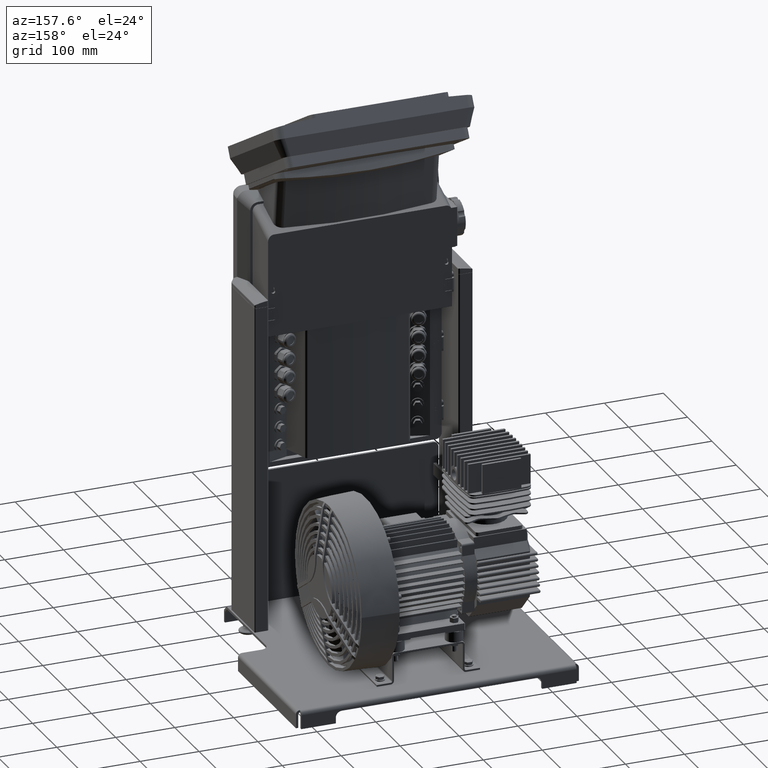
[diagram: clean part render]
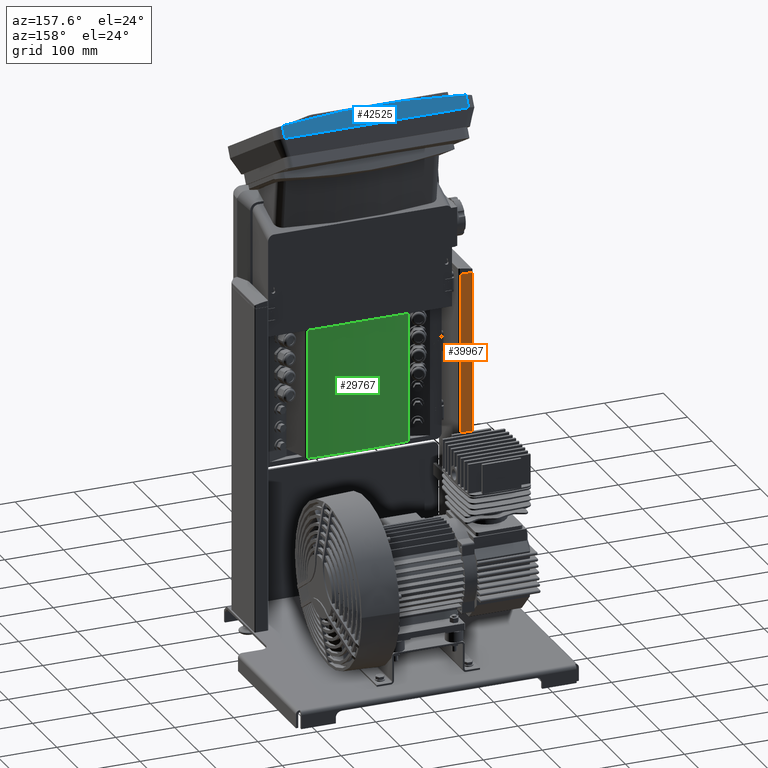
[diagram: same view with three faces highlighted in distinct colors, each labeled with its STEP entity id]
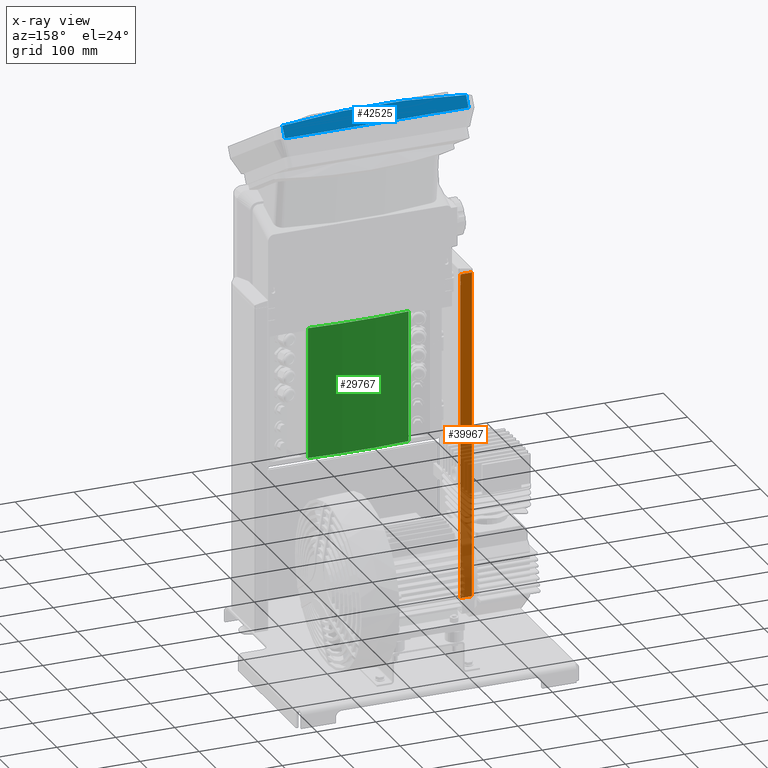
[diagram: x-ray of the same camera — body ghosted, the three highlighted faces saturated]
A machine part, auxiliary view with three faces highlighted in distinct colors.
The next image is the same camera in x-ray (body ghosted, the three faces saturated) — at least one of them is partly hidden behind the body in this view.
Their STEP definitions:

[orange] entity #39967 — the highlighted planar face has unit normal (0, 1, 0).
#39928=CARTESIAN_POINT('',(-164.00680636999982,107.80965858666561,560.00000048299978));
#39929=DIRECTION('',(0.0,1.0,0.0));
#39930=DIRECTION('',(0.0,0.0,1.0));
#39931=AXIS2_PLACEMENT_3D('',#39928,#39929,#39930);
#39932=PLANE('',#39931);
#39933=CARTESIAN_POINT('',(-183.50680636999982,107.80965858666561,560.00000048299978));
#39934=VERTEX_POINT('',#39933);
#39935=CARTESIAN_POINT('',(-183.50680636999982,107.80965858666561,4.000000416780893));
#39936=VERTEX_POINT('',#39935);
#39937=CARTESIAN_POINT('',(-183.50680636999982,107.80965858666561,560.00000048299978));
#39938=DIRECTION('',(0.0,0.0,-1.0));
#39939=VECTOR('',#39938,556.00000006621894);
#39940=LINE('',#39937,#39939);
#39941=EDGE_CURVE('',#39934,#39936,#39940,.T.);
#39942=ORIENTED_EDGE('',*,*,#39941,.F.);
#39943=CARTESIAN_POINT('',(-164.00680636999982,107.80965858666561,560.00000048299978));
#39944=VERTEX_POINT('',#39943);
#39945=CARTESIAN_POINT('',(-164.00680636999982,107.80965858666561,560.00000048299978));
#39946=DIRECTION('',(-1.0,0.0,0.0));
#39947=VECTOR('',#39946,19.5);
#39948=LINE('',#39945,#39947);
#39949=EDGE_CURVE('',#39944,#39934,#39948,.T.);
#39950=ORIENTED_EDGE('',*,*,#39949,.F.);
#39951=CARTESIAN_POINT('',(-164.00680636999982,107.80965858666561,4.000000416780893));
#39952=VERTEX_POINT('',#39951);
#39953=CARTESIAN_POINT('',(-164.00680636999982,107.80965858666561,560.00000048299978));
#39954=DIRECTION('',(0.0,0.0,-1.0));
#39955=VECTOR('',#39954,556.00000006621894);
#39956=LINE('',#39953,#39955);
#39957=EDGE_CURVE('',#39944,#39952,#39956,.T.);
#39958=ORIENTED_EDGE('',*,*,#39957,.T.);
#39959=CARTESIAN_POINT('',(-164.00680636999982,107.80965858666561,4.000000416780836));
#39960=DIRECTION('',(-1.0,0.0,0.0));
#39961=VECTOR('',#39960,19.5);
#39962=LINE('',#39959,#39961);
#39963=EDGE_CURVE('',#39952,#39936,#39962,.T.);
#39964=ORIENTED_EDGE('',*,*,#39963,.T.);
#39965=EDGE_LOOP('',(#39942,#39950,#39958,#39964));
#39966=FACE_OUTER_BOUND('',#39965,.T.);
#39967=ADVANCED_FACE('',(#39966),#39932,.T.);

[blue] entity #42525 — the highlighted planar face has unit normal (-0, 0.866, 0.5).
#40694=CARTESIAN_POINT('',(156.13061832816857,161.66731945582688,869.99730980790503));
#40695=VERTEX_POINT('',#40694);
#40711=CARTESIAN_POINT('',(-155.5306183275838,161.66731945582694,869.99730980790491));
#40712=VERTEX_POINT('',#40711);
#41709=CARTESIAN_POINT('',(-155.5306183275838,161.66731945582691,869.99730980790503));
#41710=DIRECTION('',(1.0,0.0,0.0));
#41711=VECTOR('',#41710,311.66123665575236);
#41712=LINE('',#41709,#41711);
#41713=EDGE_CURVE('',#40712,#40695,#41712,.T.);
#42362=CARTESIAN_POINT('',(-155.5306183275838,151.47881220390673,887.64432202151465));
#42363=VERTEX_POINT('',#42362);
#42385=CARTESIAN_POINT('',(-155.5306183275838,151.47881220390656,887.64432202151454));
#42386=DIRECTION('',(0.0,0.500000000000001,-0.866025403784438));
#42387=VECTOR('',#42386,20.377014503840403);
#42388=LINE('',#42385,#42387);
#42389=EDGE_CURVE('',#42363,#40712,#42388,.T.);
#42401=CARTESIAN_POINT('',(156.13061832816857,151.49335750220916,887.6191288258434));
#42402=VERTEX_POINT('',#42401);
#42422=CARTESIAN_POINT('',(0.161098976360113,895.54206760180386,-401.11104037273947));
#42423=DIRECTION('',(5.546678E-032,-0.866025403784438,-0.500000000000001));
#42424=DIRECTION('',(-1.224606E-016,-0.500000000000001,0.866025403784438));
#42425=AXIS2_PLACEMENT_3D('',#42422,#42423,#42424);
#42426=CIRCLE('',#42425,1496.2487837824006);
#42427=EDGE_CURVE('',#42402,#42363,#42426,.T.);
#42504=CARTESIAN_POINT('',(156.13061832816857,161.66731945582666,869.99730980790491));
#42505=DIRECTION('',(0.0,-0.500000000000002,0.866025403784438));
#42506=VECTOR('',#42505,20.347923907235202);
#42507=LINE('',#42504,#42506);
#42508=EDGE_CURVE('',#40695,#42402,#42507,.T.);
#42514=CARTESIAN_POINT('',(0.161098976359886,150.79518735584833,888.82839499166801));
#42515=DIRECTION('',(-6.092374E-032,0.866025403784438,0.500000000000001));
#42516=DIRECTION('',(1.0,0.0,0.0));
#42517=AXIS2_PLACEMENT_3D('',#42514,#42515,#42516);
#42518=PLANE('',#42517);
#42519=ORIENTED_EDGE('',*,*,#42389,.F.);
#42520=ORIENTED_EDGE('',*,*,#42427,.F.);
#42521=ORIENTED_EDGE('',*,*,#42508,.F.);
#42522=ORIENTED_EDGE('',*,*,#41713,.F.);
#42523=EDGE_LOOP('',(#42519,#42520,#42521,#42522));
#42524=FACE_OUTER_BOUND('',#42523,.T.);
#42525=ADVANCED_FACE('',(#42524),#42518,.T.);

[green] entity #29767 — the highlighted cylindrical surface (partial cylindrical patch) has radius 1110 mm, axis along (0, 0, -1).
#29621=CARTESIAN_POINT('',(-85.501163856517564,85.011830080143284,500.55169542980536));
#29622=VERTEX_POINT('',#29621);
#29632=CARTESIAN_POINT('',(-85.501163856517564,85.011830080143284,277.55169542980542));
#29633=VERTEX_POINT('',#29632);
#29634=CARTESIAN_POINT('',(-85.501163856517564,85.011830080143284,500.55169542980536));
#29635=DIRECTION('',(0.0,0.0,-1.0));
#29636=VECTOR('',#29635,222.99999999999994);
#29637=LINE('',#29634,#29636);
#29638=EDGE_CURVE('',#29622,#29633,#29637,.T.);
#29716=CARTESIAN_POINT('',(85.498836143482436,85.011830080143284,500.55169542980536));
#29717=VERTEX_POINT('',#29716);
#29726=CARTESIAN_POINT('',(85.498836143482663,85.011830080143284,277.55169542980542));
#29727=VERTEX_POINT('',#29726);
#29735=CARTESIAN_POINT('',(85.498836143482436,85.011830080143284,500.55169542980536));
#29736=DIRECTION('',(0.0,0.0,-1.0));
#29737=VECTOR('',#29736,222.99999999999994);
#29738=LINE('',#29735,#29737);
#29739=EDGE_CURVE('',#29717,#29727,#29738,.T.);
#29744=CARTESIAN_POINT('',(-0.001163856517678,-1021.6903656346751,500.55169542980536));
#29745=DIRECTION('',(1.593145E-016,6.123032E-017,-1.0));
#29746=DIRECTION('',(-0.077027027027027,0.997029005148485,4.877688E-017));
#29747=AXIS2_PLACEMENT_3D('',#29744,#29745,#29746);
#29748=CYLINDRICAL_SURFACE('',#29747,1110.0);
#29749=CARTESIAN_POINT('',(-0.001163856517678,-1021.6903656346751,500.55169542980536));
#29750=DIRECTION('',(3.757138E-018,-4.863196E-017,1.0));
#29751=DIRECTION('',(-0.077027027027027,0.997029005148485,4.877688E-017));
#29752=AXIS2_PLACEMENT_3D('',#29749,#29750,#29751);
#29753=CIRCLE('',#29752,1110.0);
#29754=EDGE_CURVE('',#29717,#29622,#29753,.T.);
#29755=ORIENTED_EDGE('',*,*,#29754,.F.);
#29756=ORIENTED_EDGE('',*,*,#29739,.T.);
#29757=CARTESIAN_POINT('',(-0.001163856517678,-1021.6903656346751,277.55169542980536));
#29758=DIRECTION('',(-4.068137E-018,5.265750E-017,-1.0));
#29759=DIRECTION('',(-0.077027027027027,0.997029005148485,5.281441E-017));
#29760=AXIS2_PLACEMENT_3D('',#29757,#29758,#29759);
#29761=CIRCLE('',#29760,1110.0);
#29762=EDGE_CURVE('',#29633,#29727,#29761,.T.);
#29763=ORIENTED_EDGE('',*,*,#29762,.F.);
#29764=ORIENTED_EDGE('',*,*,#29638,.F.);
#29765=EDGE_LOOP('',(#29755,#29756,#29763,#29764));
#29766=FACE_OUTER_BOUND('',#29765,.T.);
#29767=ADVANCED_FACE('',(#29766),#29748,.T.);